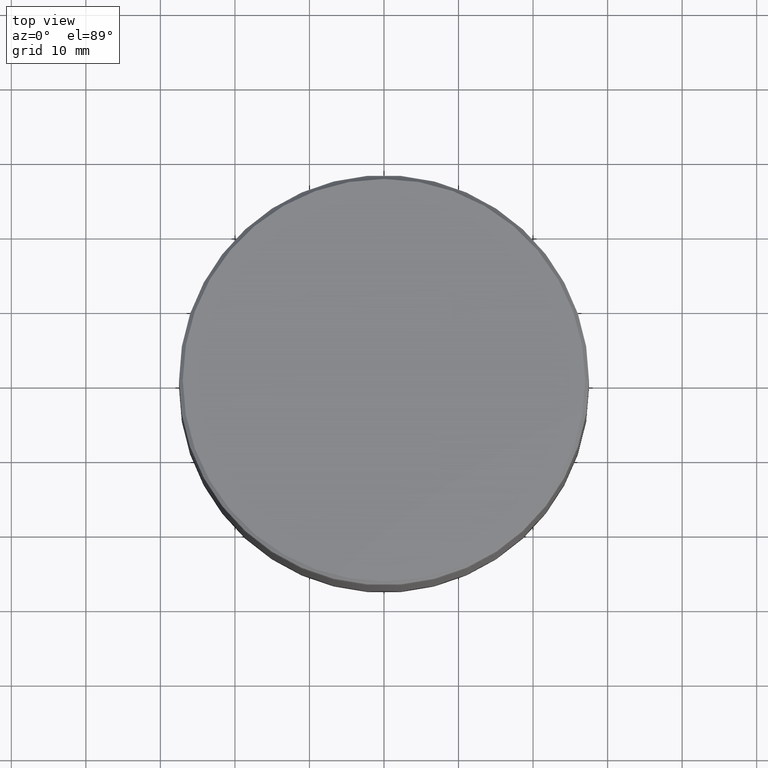
[diagram: clean part render]
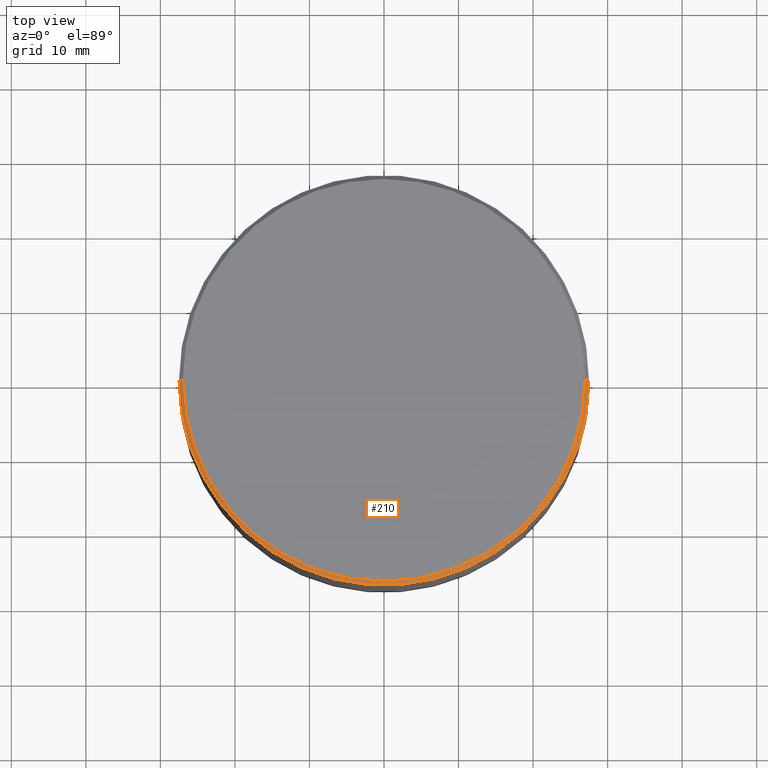
[diagram: same view with one face highlighted and labeled with its STEP entity id]
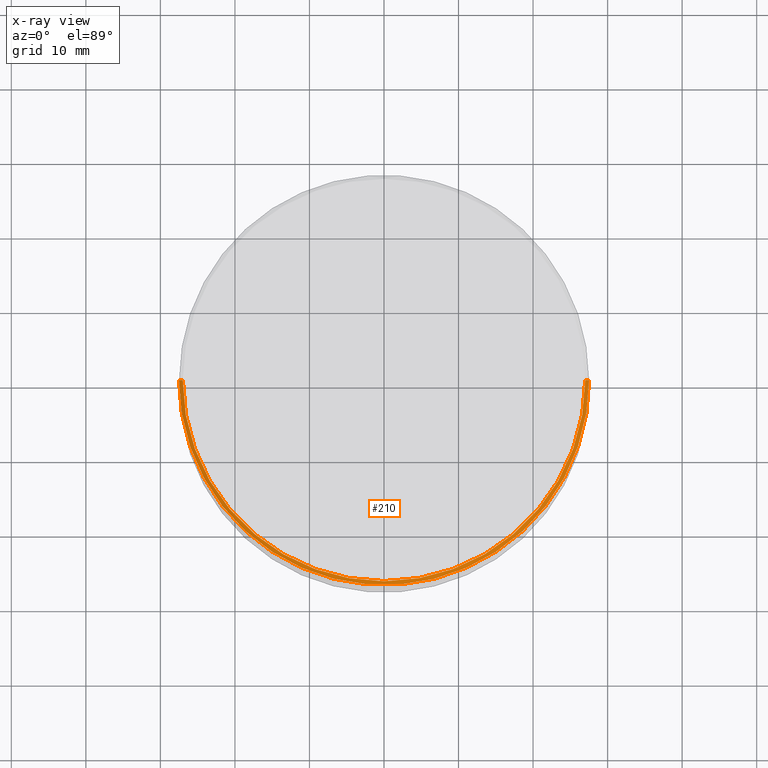
[diagram: x-ray of the same camera — body ghosted, the highlighted face saturated]
A machine part, top view. The second image highlights one B-rep face of the part: STEP entity #210.
The next image is the same camera in x-ray: the body ghosted, the highlighted face saturated — about 0% of this face is hidden behind the body in this view.
In plain terms, the highlighted conical surface has half-angle 45 deg.
Its self-contained STEP definition (entity closure, byte-faithful):
#5 = DIRECTION ( 'NONE',  ( 0.000000000000000000, 0.000000000000000000, -1.000000000000000000 ) ) ;
#17 = CARTESIAN_POINT ( 'NONE',  ( 26.99999999999999289, 3.306546357697852944E-15, 0.000000000000000000 ) ) ;
#20 = DIRECTION ( 'NONE',  ( -0.000000000000000000, -0.000000000000000000, 1.000000000000000000 ) ) ;
#38 = DIRECTION ( 'NONE',  ( -1.000000000000000000, 0.000000000000000000, 0.000000000000000000 ) ) ;
#39 = EDGE_CURVE ( 'NONE', #406, #95, #88, .T. ) ;
#62 = EDGE_CURVE ( 'NONE', #95, #181, #413, .T. ) ;
#69 = VECTOR ( 'NONE', #227, 1000.000000000000000 ) ;
#72 = EDGE_CURVE ( 'NONE', #181, #461, #427, .T. ) ;
#88 = CIRCLE ( 'NONE', #195, 26.99999999999999289 ) ;
#95 = VERTEX_POINT ( 'NONE', #212 ) ;
#126 = DIRECTION ( 'NONE',  ( 0.000000000000000000, 0.000000000000000000, -1.000000000000000000 ) ) ;
#146 = ORIENTED_EDGE ( 'NONE', *, *, #39, .F. ) ;
#181 = VERTEX_POINT ( 'NONE', #343 ) ;
#194 = CARTESIAN_POINT ( 'NONE',  ( 0.000000000000000000, 0.000000000000000000, 0.000000000000000000 ) ) ;
#195 = AXIS2_PLACEMENT_3D ( 'NONE', #194, #20, #368 ) ;
#201 = DIRECTION ( 'NONE',  ( 0.7071067811865426878, 8.659560562354874926E-17, -0.7071067811865524577 ) ) ;
#205 = AXIS2_PLACEMENT_3D ( 'NONE', #208, #126, #390 ) ;
#208 = CARTESIAN_POINT ( 'NONE',  ( 0.000000000000000000, 0.000000000000000000, -0.5000000000000143219 ) ) ;
#210 = ADVANCED_FACE ( 'NONE', ( #526 ), #483, .T. ) ;
#212 = CARTESIAN_POINT ( 'NONE',  ( 26.99999999999999289, 3.337162527676537126E-15, 0.000000000000000000 ) ) ;
#219 = CARTESIAN_POINT ( 'NONE',  ( 0.000000000000000000, 0.000000000000000000, 0.000000000000000000 ) ) ;
#227 = DIRECTION ( 'NONE',  ( -0.7071067811865426878, 0.000000000000000000, -0.7071067811865524577 ) ) ;
#239 = CARTESIAN_POINT ( 'NONE',  ( -26.99999999999999289, 0.000000000000000000, 0.000000000000000000 ) ) ;
#241 = EDGE_CURVE ( 'NONE', #406, #461, #532, .T. ) ;
#272 = ORIENTED_EDGE ( 'NONE', *, *, #72, .F. ) ;
#307 = ORIENTED_EDGE ( 'NONE', *, *, #241, .T. ) ;
#340 = AXIS2_PLACEMENT_3D ( 'NONE', #219, #5, #38 ) ;
#343 = CARTESIAN_POINT ( 'NONE',  ( 27.50000000000000000, 0.000000000000000000, -0.5000000000000143219 ) ) ;
#360 = VECTOR ( 'NONE', #201, 1000.000000000000000 ) ;
#368 = DIRECTION ( 'NONE',  ( 1.000000000000000000, 0.000000000000000000, 0.000000000000000000 ) ) ;
#390 = DIRECTION ( 'NONE',  ( 1.000000000000000000, 0.000000000000000000, 0.000000000000000000 ) ) ;
#402 = CARTESIAN_POINT ( 'NONE',  ( -26.99999999999999289, 0.000000000000000000, 0.000000000000000000 ) ) ;
#406 = VERTEX_POINT ( 'NONE', #239 ) ;
#413 = LINE ( 'NONE', #17, #360 ) ;
#418 = ORIENTED_EDGE ( 'NONE', *, *, #62, .F. ) ;
#427 = CIRCLE ( 'NONE', #205, 27.50000000000000000 ) ;
#461 = VERTEX_POINT ( 'NONE', #550 ) ;
#483 = CONICAL_SURFACE ( 'NONE', #340, 26.99999999999999289, 0.7853981633974415066 ) ;
#512 = EDGE_LOOP ( 'NONE', ( #418, #146, #307, #272 ) ) ;
#526 = FACE_OUTER_BOUND ( 'NONE', #512, .T. ) ;
#532 = LINE ( 'NONE', #402, #69 ) ;
#550 = CARTESIAN_POINT ( 'NONE',  ( -27.50000000000000000, 3.367778697655221307E-15, -0.5000000000000143219 ) ) ;